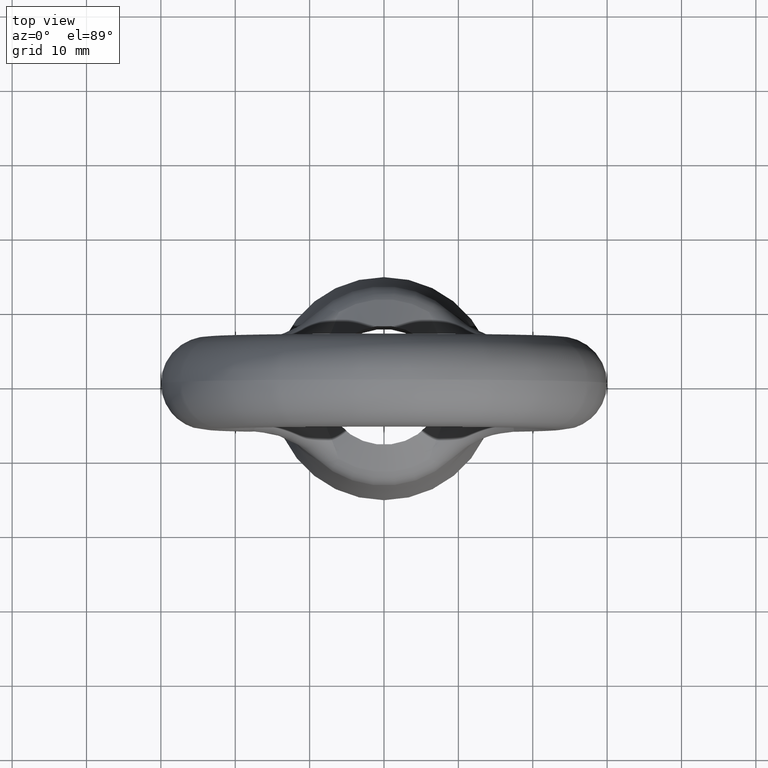
[diagram: clean part render]
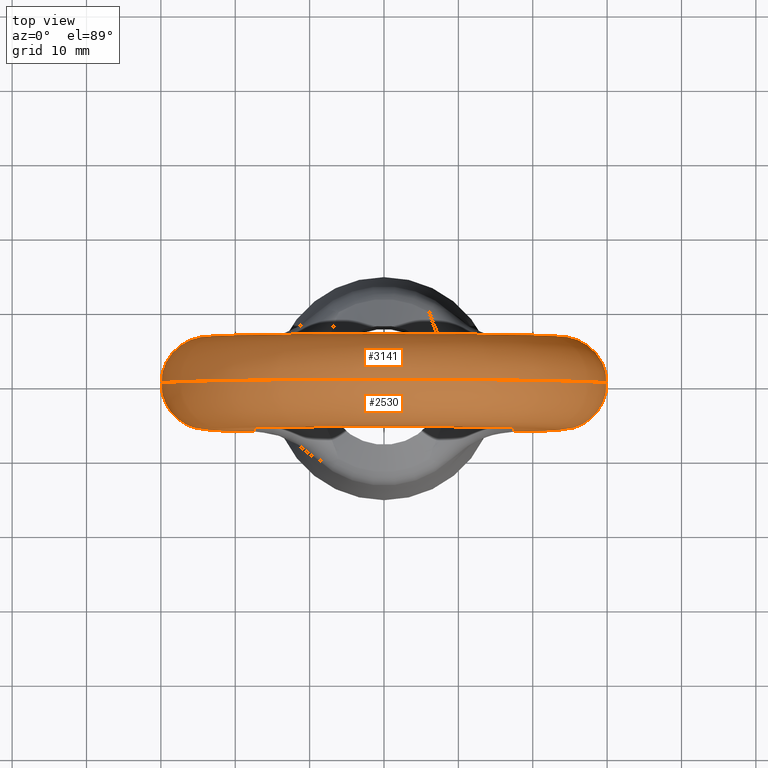
[diagram: same view with one multi-face feature highlighted, each face labeled with its STEP entity id]
A machine part, top view. The highlighted faces form ONE feature: a constant-radius fillet chain: 2 tangent blend faces with common blend radius 6.25 mm. The faces share edges in the B-rep.
Their STEP definitions:
[1] entity #2530 (Torus):
#2 = ORIENTED_EDGE ( 'NONE', *, *, #4, .T. ) ;
#3 = EDGE_CURVE ( 'NONE', #1544, #2917, #3231, .T. ) ;
#4 = EDGE_CURVE ( 'NONE', #2929, #2961, #2964, .T. ) ;
#1157 = ORIENTED_EDGE ( 'NONE', *, *, #3, .T. ) ;
#1544 = VERTEX_POINT ( 'NONE', #2965 ) ;
#2528 = EDGE_CURVE ( 'NONE', #2962, #1544, #3105, .T. ) ;
#2530 = ADVANCED_FACE ( 'NONE', ( #3210 ), #3207, .T. ) ;
#2531 = ORIENTED_EDGE ( 'NONE', *, *, #2528, .T. ) ;
#2917 = VERTEX_POINT ( 'NONE', #3208 ) ;
#2918 = ORIENTED_EDGE ( 'NONE', *, *, #2919, .T. ) ;
#2919 = EDGE_CURVE ( 'NONE', #2917, #2920, #3201, .T. ) ;
#2920 = VERTEX_POINT ( 'NONE', #3653 ) ;
#2921 = ORIENTED_EDGE ( 'NONE', *, *, #2922, .T. ) ;
#2922 = EDGE_CURVE ( 'NONE', #2920, #2923, #3652, .T. ) ;
#2923 = VERTEX_POINT ( 'NONE', #3651 ) ;
#2924 = ORIENTED_EDGE ( 'NONE', *, *, #2925, .F. ) ;
#2925 = EDGE_CURVE ( 'NONE', #2926, #2923, #3650, .T. ) ;
#2926 = VERTEX_POINT ( 'NONE', #4097 ) ;
#2927 = ORIENTED_EDGE ( 'NONE', *, *, #2928, .T. ) ;
#2928 = EDGE_CURVE ( 'NONE', #2926, #2929, #4167, .T. ) ;
#2929 = VERTEX_POINT ( 'NONE', #4197 ) ;
#2954 = ORIENTED_EDGE ( 'NONE', *, *, #2960, .T. ) ;
#2960 = EDGE_CURVE ( 'NONE', #2961, #2962, #4075, .T. ) ;
#2961 = VERTEX_POINT ( 'NONE', #4084 ) ;
#2962 = VERTEX_POINT ( 'NONE', #4076 ) ;
#2963 = EDGE_LOOP ( 'NONE', ( #2954, #2531, #1157, #2918, #2921, #2924, #2927, #2 ) ) ;
#2964 = B_SPLINE_CURVE_WITH_KNOTS ( 'NONE', 3,
 ( #3227, #3226, #3225, #3224, #3223, #3222, #3221, #3220, #3248, #3247, #3246, #3245, #3244, #3243, #3242, #3241, #3240, #3239, #3238, #3237, #3236, #3121, #3120, #3119, #3118, #3117, #3116, #3115, #3114, #3113, #3112, #3111, #3110, #3109, #3108, #3107 ),
 .UNSPECIFIED., .F., .F.,
 ( 4, 2, 2, 2, 2, 2, 2, 2, 2, 2, 2, 2, 2, 2, 2, 2, 2, 4 ),
 ( 0.0000000000000000000, 0.002532923632758632700, 0.005065847265517265400, 0.006332309081896583600, 0.007598770898275901900, 0.008865232714655221100, 0.009498463622844882000, 0.01013169453103454500, 0.01076492543922420500, 0.01108154089331903400, 0.01139815634741386600, 0.01203138725560352900, 0.01266461816379318800, 0.01393107998017250100, 0.01519754179655181400, 0.01773046542931045300, 0.01899692724568977100, 0.02026338906206909300 ),
 .UNSPECIFIED. ) ;
#2965 = CARTESIAN_POINT ( 'NONE',  ( -19.36485179142080400, 2.264335115502151900E-012, -22.91293335861412200 ) ) ;
#2966 = CARTESIAN_POINT ( 'NONE',  ( -17.04277179703460000, -6.151012195224270200, -18.09589767904829900 ) ) ;
#2967 = CARTESIAN_POINT ( 'NONE',  ( -16.95311205554917700, -6.112238205607139800, -18.47604050845937400 ) ) ;
#2968 = CARTESIAN_POINT ( 'NONE',  ( -16.89125194217589500, -6.057159217524242600, -18.86162937785950400 ) ) ;
#2969 = CARTESIAN_POINT ( 'NONE',  ( -16.87500171211552700, -5.927312403113511200, -19.43398348306587300 ) ) ;
#2970 = CARTESIAN_POINT ( 'NONE',  ( -16.88267183032699100, -5.875723234500640000, -19.62415516973145900 ) ) ;
#2971 = CARTESIAN_POINT ( 'NONE',  ( -16.92664900067185800, -5.754983130849096200, -19.98972230802001000 ) ) ;
#2972 = CARTESIAN_POINT ( 'NONE',  ( -16.96285689485827000, -5.685539577687731800, -20.16659089490268600 ) ) ;
#2973 = CARTESIAN_POINT ( 'NONE',  ( -17.06323072682812000, -5.524901373026975400, -20.50722626260734300 ) ) ;
#2974 = CARTESIAN_POINT ( 'NONE',  ( -17.12762721360508400, -5.433500076670241300, -20.67062729624655800 ) ) ;
#2975 = CARTESIAN_POINT ( 'NONE',  ( -17.27456490243411100, -5.234201629986115400, -20.97250123242062300 ) ) ;
#2976 = CARTESIAN_POINT ( 'NONE',  ( -17.35806445011386500, -5.124824790626981000, -21.11355117864467300 ) ) ;
#2977 = CARTESIAN_POINT ( 'NONE',  ( -17.62311183871158300, -4.774557247408192300, -21.50293335712018500 ) ) ;
#2978 = CARTESIAN_POINT ( 'NONE',  ( -17.81709783172027900, -4.513381910449387700, -21.71768966841167300 ) ) ;
#2979 = CARTESIAN_POINT ( 'NONE',  ( -18.19918300366497700, -3.937557177171242500, -22.08753799249271000 ) ) ;
#2980 = CARTESIAN_POINT ( 'NONE',  ( -18.38228753433401900, -3.630914670358940100, -22.23753078786987200 ) ) ;
#2981 = CARTESIAN_POINT ( 'NONE',  ( -18.63069753655396700, -3.142423178963219800, -22.42695027002430300 ) ) ;
#2982 = CARTESIAN_POINT ( 'NONE',  ( -18.70921020355955000, -2.974811561932974200, -22.48399402095878600 ) ) ;
#2983 = CARTESIAN_POINT ( 'NONE',  ( -18.85581844273030000, -2.629619371804272200, -22.58720285964652100 ) ) ;
#2988 = CARTESIAN_POINT ( 'NONE',  ( -13.86567700764093500, -2.454779454984175000, -11.48716104974024800 ) ) ;
#2989 = CARTESIAN_POINT ( 'NONE',  ( -14.44652581673486600, -2.656681776269819400, -10.89839972138922000 ) ) ;
#2990 = CARTESIAN_POINT ( 'NONE',  ( -14.73188768323065100, -2.771871324656344400, -10.60192377022214700 ) ) ;
#2991 = CARTESIAN_POINT ( 'NONE',  ( -15.16392750144547600, -2.990702523390920100, -10.17705467096652900 ) ) ;
#2992 = CARTESIAN_POINT ( 'NONE',  ( -15.30744675396986000, -3.070880720529245400, -10.04012331732672100 ) ) ;
#2993 = CARTESIAN_POINT ( 'NONE',  ( -15.59790482079293600, -3.255144549051865300, -9.787617082536138800 ) ) ;
#2994 = CARTESIAN_POINT ( 'NONE',  ( -15.74643954804348300, -3.360181915901134400, -9.669975295900087500 ) ) ;
#2995 = CARTESIAN_POINT ( 'NONE',  ( -15.97394226603090300, -3.547933730310163000, -9.536845725587085100 ) ) ;
#2996 = CARTESIAN_POINT ( 'NONE',  ( -16.04966970211485100, -3.614860396510169800, -9.500435584846673700 ) ) ;
#2997 = CARTESIAN_POINT ( 'NONE',  ( -16.20189517686499800, -3.760407391947597800, -9.451324885078529200 ) ) ;
#2998 = CARTESIAN_POINT ( 'NONE',  ( -16.27760672172202000, -3.838501739769529600, -9.439438757284637700 ) ) ;
#2999 = CARTESIAN_POINT ( 'NONE',  ( -16.42137521235927600, -3.998558444761923800, -9.448072332348939300 ) ) ;
#3000 = CARTESIAN_POINT ( 'NONE',  ( -16.49066409196688800, -4.081966684756087800, -9.469041671484127700 ) ) ;
#3001 = CARTESIAN_POINT ( 'NONE',  ( -16.61557402954131400, -4.242521271216128700, -9.539345349481818600 ) ) ;
#3002 = CARTESIAN_POINT ( 'NONE',  ( -16.67307212306014100, -4.321899963471524100, -9.589288398273845700 ) ) ;
#3003 = CARTESIAN_POINT ( 'NONE',  ( -16.82653295781729600, -4.545061912940921500, -9.765227703158947400 ) ) ;
#3004 = CARTESIAN_POINT ( 'NONE',  ( -16.90759218076232500, -4.678616665513264800, -9.918353659678583500 ) ) ;
#3005 = CARTESIAN_POINT ( 'NONE',  ( -17.04430961157680700, -4.917960560620718600, -10.24969359798504700 ) ) ;
#3101 = DIRECTION ( 'NONE',  ( 0.0000000000000000000, 0.0000000000000000000, -1.000000000000000000 ) ) ;
#3102 = DIRECTION ( 'NONE',  ( 0.0000000000000000000, -1.000000000000000000, 0.0000000000000000000 ) ) ;
#3103 = CARTESIAN_POINT ( 'NONE',  ( 0.0000000000000000000, 0.0000000000000000000, 0.0000000000000000000 ) ) ;
#3104 = AXIS2_PLACEMENT_3D ( 'NONE', #3103, #3102, #3101 ) ;
#3105 = CIRCLE ( 'NONE', #3104, 29.99999999999974800 ) ;
#3107 = CARTESIAN_POINT ( 'NONE',  ( 17.04277179703460000, -6.151012195224280000, -18.09589767904829900 ) ) ;
#3108 = CARTESIAN_POINT ( 'NONE',  ( 17.14134282389802500, -6.193639933257352400, -17.67797243825434000 ) ) ;
#3109 = CARTESIAN_POINT ( 'NONE',  ( 17.22218837957597500, -6.223411038292576700, -17.25672796667097200 ) ) ;
#3110 = CARTESIAN_POINT ( 'NONE',  ( 17.35217542595722400, -6.253667041882923000, -16.40805854493315900 ) ) ;
#3111 = CARTESIAN_POINT ( 'NONE',  ( 17.40140720904229000, -6.254127769587932500, -15.97950670511449500 ) ) ;
#3112 = CARTESIAN_POINT ( 'NONE',  ( 17.50459713303729700, -6.205747314589185500, -14.69247961850473200 ) ) ;
#3113 = CARTESIAN_POINT ( 'NONE',  ( 17.51517308195389000, -6.109353692984737600, -13.84437779262219300 ) ) ;
#3114 = CARTESIAN_POINT ( 'NONE',  ( 17.45039198008589700, -5.843876852509538400, -12.59074679657612000 ) ) ;
#3115 = CARTESIAN_POINT ( 'NONE',  ( 17.41481085278458700, -5.734211361053395400, -12.17316483598339300 ) ) ;
#3116 = CARTESIAN_POINT ( 'NONE',  ( 17.30975759477319500, -5.465329497170240600, -11.36132989875054000 ) ) ;
#3117 = CARTESIAN_POINT ( 'NONE',  ( 17.24190867375002900, -5.308071033144079500, -10.96759668570014800 ) ) ;
#3118 = CARTESIAN_POINT ( 'NONE',  ( 17.09439175025058000, -5.013363293265668700, -10.40955110482752500 ) ) ;
#3119 = CARTESIAN_POINT ( 'NONE',  ( 17.03715011562820400, -4.904719203633753500, -10.22887495143930700 ) ) ;
#3120 = CARTESIAN_POINT ( 'NONE',  ( 16.89826487496196700, -4.663084896868132200, -9.899654922247419700 ) ) ;
#3121 = CARTESIAN_POINT ( 'NONE',  ( 16.81493675885699400, -4.526757330273079000, -9.746578786266638900 ) ) ;
#3189 = CARTESIAN_POINT ( 'NONE',  ( -17.10050854641172800, -5.025166381319348100, -10.43014570516975100 ) ) ;
#3190 = CARTESIAN_POINT ( 'NONE',  ( -17.24581390449136000, -5.316780234065067400, -10.98790691262838100 ) ) ;
#3191 = CARTESIAN_POINT ( 'NONE',  ( -17.31327665560580400, -5.473647284645641900, -11.38331106369009900 ) ) ;
#3192 = CARTESIAN_POINT ( 'NONE',  ( -17.41708387142209700, -5.740757657185838500, -12.19624166517495200 ) ) ;
#3193 = CARTESIAN_POINT ( 'NONE',  ( -17.45183226864463700, -5.848603566488181500, -12.60985788679867000 ) ) ;
#3194 = CARTESIAN_POINT ( 'NONE',  ( -17.49422237156417000, -6.024730697094868900, -13.44814161974026600 ) ) ;
#3195 = CARTESIAN_POINT ( 'NONE',  ( -17.50153390053537800, -6.092908435521238200, -13.87502652674236000 ) ) ;
#3196 = CARTESIAN_POINT ( 'NONE',  ( -17.48855206723204600, -6.192231163593310100, -14.72638065050606700 ) ) ;
#3197 = CARTESIAN_POINT ( 'NONE',  ( -17.46836725311422400, -6.223556941446915400, -15.15085578333784600 ) ) ;
#3198 = CARTESIAN_POINT ( 'NONE',  ( -17.36497183959187400, -6.269493198029855400, -16.42038138290027800 ) ) ;
#3199 = CARTESIAN_POINT ( 'NONE',  ( -17.23954784160143900, -6.236109388039369400, -17.26159901721108300 ) ) ;
#3200 = CARTESIAN_POINT ( 'NONE',  ( -17.04277179703460000, -6.151012195224270200, -18.09589767904829900 ) ) ;
#3201 = B_SPLINE_CURVE_WITH_KNOTS ( 'NONE', 3,
 ( #3200, #3199, #3198, #3197, #3196, #3195, #3194, #3193, #3192, #3191, #3190, #3189, #3005, #3004, #3003, #3002, #3001, #3000, #2999, #2998, #2997, #2996, #2995, #2994, #2993, #2992, #2991, #2990, #2989, #2988, #3638, #3640, #3639, #3637, #3636, #3635, #3634, #3633 ),
 .UNSPECIFIED., .F., .F.,
 ( 4, 2, 2, 2, 2, 2, 2, 2, 2, 2, 2, 2, 2, 2, 2, 2, 2, 2, 4 ),
 ( 0.0000000000000000000, 0.002547673243820221700, 0.003821509865730331900, 0.005095346487640441600, 0.006369183109550552300, 0.007643019731460663800, 0.008279938042415720800, 0.008916856353370779600, 0.009235315508848308100, 0.009553774664325838400, 0.009872233819803366900, 0.01019069297528089700, 0.01082761128623596100, 0.01146452959719102500, 0.01273836621910115100, 0.01401220284101127900, 0.01528603946292140600, 0.01783371270674166000, 0.02038138595056191200 ),
 .UNSPECIFIED. ) ;
#3202 = DIRECTION ( 'NONE',  ( 0.0000000000000000000, 0.0000000000000000000, -1.000000000000000000 ) ) ;
#3203 = DIRECTION ( 'NONE',  ( 0.0000000000000000000, -1.000000000000000000, 0.0000000000000000000 ) ) ;
#3204 = DIRECTION ( 'NONE',  ( 0.0000000000000000000, 0.0000000000000000000, -1.000000000000000000 ) ) ;
#3205 = DIRECTION ( 'NONE',  ( 0.0000000000000000000, -1.000000000000000000, 0.0000000000000000000 ) ) ;
#3206 = AXIS2_PLACEMENT_3D ( 'NONE', #3209, #3205, #3204 ) ;
#3207 = TOROIDAL_SURFACE ( 'NONE', #3206, 23.74999999999975100, 6.250000000000000000 ) ;
#3208 = CARTESIAN_POINT ( 'NONE',  ( -17.04277179703460000, -6.151012195224270200, -18.09589767904829900 ) ) ;
#3209 = CARTESIAN_POINT ( 'NONE',  ( 0.0000000000000000000, 0.0000000000000000000, 0.0000000000000000000 ) ) ;
#3210 = FACE_OUTER_BOUND ( 'NONE', #2963, .T. ) ;
#3217 = CARTESIAN_POINT ( 'NONE',  ( -19.33119322631015500, -0.7809759802542158800, -22.89297971279860300 ) ) ;
#3218 = CARTESIAN_POINT ( 'NONE',  ( -19.36485179142093600, -0.3877032855326345600, -22.91293335861418600 ) ) ;
#3219 = CARTESIAN_POINT ( 'NONE',  ( -19.36485179142080400, 2.264335115502151900E-012, -22.91293335861412200 ) ) ;
#3220 = CARTESIAN_POINT ( 'NONE',  ( 13.54699932117073000, -2.362357481828071900, -11.80366577606515600 ) ) ;
#3221 = CARTESIAN_POINT ( 'NONE',  ( 12.93692658897605300, -2.208915950697682500, -12.38229760324862900 ) ) ;
#3222 = CARTESIAN_POINT ( 'NONE',  ( 12.62566730780291000, -2.141807837083096200, -12.66469655626187500 ) ) ;
#3223 = CARTESIAN_POINT ( 'NONE',  ( 11.67016064369422600, -1.960211869483216700, -13.48508992466458700 ) ) ;
#3224 = CARTESIAN_POINT ( 'NONE',  ( 11.00414795365064100, -1.865057928520021900, -13.99615391087030000 ) ) ;
#3225 = CARTESIAN_POINT ( 'NONE',  ( 9.607297013871297900, -1.705106647830318700, -14.93285550772168700 ) ) ;
#3226 = CARTESIAN_POINT ( 'NONE',  ( 8.876682196791099600, -1.640770884205409400, -15.35889604689332400 ) ) ;
#3227 = CARTESIAN_POINT ( 'NONE',  ( 8.111039694346169800, -1.587437685473579900, -15.73774275576744800 ) ) ;
#3228 = CARTESIAN_POINT ( 'NONE',  ( -18.92418516439107300, -2.451129391184467800, -22.63353181231373100 ) ) ;
#3229 = CARTESIAN_POINT ( 'NONE',  ( -19.10775450492446800, -1.909922827401022700, -22.75509216573016100 ) ) ;
#3230 = CARTESIAN_POINT ( 'NONE',  ( -19.20248790463329800, -1.539889588704345100, -22.81392465897806000 ) ) ;
#3231 = B_SPLINE_CURVE_WITH_KNOTS ( 'NONE', 3,
 ( #3219, #3218, #3217, #3230, #3229, #3228, #2983, #2982, #2981, #2980, #2979, #2978, #2977, #2976, #2975, #2974, #2973, #2972, #2971, #2970, #2969, #2968, #2967, #2966 ),
 .UNSPECIFIED., .F., .F.,
 ( 4, 2, 2, 2, 2, 2, 2, 2, 2, 2, 2, 4 ),
 ( 0.009352304537785046200, 0.01052074067515675800, 0.01168917681252846700, 0.01227339488121432400, 0.01285761294990017700, 0.01402604908727189000, 0.01519448522464360600, 0.01577870329332946300, 0.01636292136201532300, 0.01694713943070118000, 0.01753135749938703600, 0.01869979363675875300 ),
 .UNSPECIFIED. ) ;
#3236 = CARTESIAN_POINT ( 'NONE',  ( 16.65781289992851200, -4.300586411085213000, -9.575050532782443100 ) ) ;
#3237 = CARTESIAN_POINT ( 'NONE',  ( 16.59890712237342600, -4.220182988391112400, -9.527075591415297100 ) ) ;
#3238 = CARTESIAN_POINT ( 'NONE',  ( 16.47078785150447900, -4.057639141829227500, -9.461710667581147800 ) ) ;
#3239 = CARTESIAN_POINT ( 'NONE',  ( 16.40123005739349800, -3.975077192505347400, -9.444081537217437400 ) ) ;
#3240 = CARTESIAN_POINT ( 'NONE',  ( 16.18019810619075100, -3.732719797247217900, -9.440621465775503700 ) ) ;
#3241 = CARTESIAN_POINT ( 'NONE',  ( 16.02313715277431400, -3.586749817764413300, -9.504876318892199200 ) ) ;
#3242 = CARTESIAN_POINT ( 'NONE',  ( 15.72250592268965800, -3.342542114641776400, -9.687751591404126100 ) ) ;
#3243 = CARTESIAN_POINT ( 'NONE',  ( 15.57400674776673500, -3.238809136846755100, -9.807060328859117600 ) ) ;
#3244 = CARTESIAN_POINT ( 'NONE',  ( 15.28085567527491200, -3.055408538262048600, -10.06482561417770100 ) ) ;
#3245 = CARTESIAN_POINT ( 'NONE',  ( 15.13765308737072200, -2.976593723816713900, -10.20241387556497300 ) ) ;
#3246 = CARTESIAN_POINT ( 'NONE',  ( 14.70917673538873100, -2.762201382763406900, -10.62535612887652900 ) ) ;
#3247 = CARTESIAN_POINT ( 'NONE',  ( 14.42488092375795400, -2.648333875802516300, -10.92059145458517700 ) ) ;
#3248 = CARTESIAN_POINT ( 'NONE',  ( 13.84355405973236100, -2.447978338930093800, -11.50931385154767000 ) ) ;
#3633 = CARTESIAN_POINT ( 'NONE',  ( -8.111039694346160900, -1.587437685473565000, -15.73774275576744800 ) ) ;
#3634 = CARTESIAN_POINT ( 'NONE',  ( -8.877050675783799200, -1.640796551750357800, -15.35871372021575700 ) ) ;
#3635 = CARTESIAN_POINT ( 'NONE',  ( -9.611557705893833500, -1.705393914827898000, -14.93065098489180000 ) ) ;
#3636 = CARTESIAN_POINT ( 'NONE',  ( -11.02122853489527700, -1.867217477117489600, -13.98403742893089500 ) ) ;
#3637 = CARTESIAN_POINT ( 'NONE',  ( -11.69746644432935900, -1.964454972726174400, -13.46338786075104300 ) ) ;
#3638 = CARTESIAN_POINT ( 'NONE',  ( -13.57045371240568500, -2.368919328573083000, -11.78069031534973600 ) ) ;
#3639 = CARTESIAN_POINT ( 'NONE',  ( -12.65455403378713100, -2.147803229258527000, -12.63896386355753500 ) ) ;
#3640 = CARTESIAN_POINT ( 'NONE',  ( -12.96483437946014700, -2.215326195808785800, -12.35649845964477900 ) ) ;
#3641 = CARTESIAN_POINT ( 'NONE',  ( 0.0000000000000000000, 7.653789711389857900E-016, 0.0000000000000000000 ) ) ;
#3642 = AXIS2_PLACEMENT_3D ( 'NONE', #3641, #3203, #3202 ) ;
#3644 = CARTESIAN_POINT ( 'NONE',  ( -8.000000000000000000, 0.0000000000000000000, -15.56437700000010200 ) ) ;
#3645 = CARTESIAN_POINT ( 'NONE',  ( -8.000004650171268500, -0.2682021957783544100, -15.56438005725637600 ) ) ;
#3646 = CARTESIAN_POINT ( 'NONE',  ( -8.009119476214849000, -0.5383928130978474800, -15.57938130876970600 ) ) ;
#3647 = CARTESIAN_POINT ( 'NONE',  ( -8.045737007442703300, -1.068063597566312900, -15.63773547490219300 ) ) ;
#3648 = CARTESIAN_POINT ( 'NONE',  ( -8.073215190745678200, -1.329471996224376600, -15.68102708744298600 ) ) ;
#3649 = CARTESIAN_POINT ( 'NONE',  ( -8.111039694346160900, -1.587437685473565000, -15.73774275576744800 ) ) ;
#3650 = CIRCLE ( 'NONE', #3642, 17.49999999999975100 ) ;
#3651 = CARTESIAN_POINT ( 'NONE',  ( -8.000000000000000000, 0.0000000000000000000, -15.56437700000010200 ) ) ;
#3652 = B_SPLINE_CURVE_WITH_KNOTS ( 'NONE', 3,
 ( #3649, #3648, #3647, #3646, #3645, #3644 ),
 .UNSPECIFIED., .F., .F.,
 ( 4, 2, 4 ),
 ( 0.007011151935412306000, 0.007809217623441650100, 0.008607283311470995100 ),
 .UNSPECIFIED. ) ;
#3653 = CARTESIAN_POINT ( 'NONE',  ( -8.111039694346160900, -1.587437685473565000, -15.73774275576744800 ) ) ;
#4075 = B_SPLINE_CURVE_WITH_KNOTS ( 'NONE', 3,
 ( #4220, #4219, #4218, #4217, #4216, #4215, #4083, #4082, #4081, #4080, #4079, #4078, #4077, #4166, #4165, #4164, #4163, #4162, #4161, #4160, #4159, #4158, #4157, #4156 ),
 .UNSPECIFIED., .F., .F.,
 ( 4, 2, 2, 2, 2, 2, 2, 2, 2, 2, 2, 4 ),
 ( 0.0000000000000000000, 0.001169038067223127100, 0.001753557100834690200, 0.002338076134446253700, 0.002922595168057817300, 0.003507114201669380400, 0.004091633235280944800, 0.004676152268892507500, 0.005845190336115634600, 0.007014228403338760800, 0.008183266470561889600, 0.009352304537785015000 ),
 .UNSPECIFIED. ) ;
#4076 = CARTESIAN_POINT ( 'NONE',  ( 19.36485179142080400, -2.264111036967491900E-012, -22.91293335861412200 ) ) ;
#4077 = CARTESIAN_POINT ( 'NONE',  ( 17.62888353383861800, -4.765889005356911800, -21.49313357080668000 ) ) ;
#4078 = CARTESIAN_POINT ( 'NONE',  ( 17.53480404490484500, -4.891260074294403500, -21.37323152869046400 ) ) ;
#4079 = CARTESIAN_POINT ( 'NONE',  ( 17.35756464424425300, -5.125483688448054100, -21.11278532567024500 ) ) ;
#4080 = CARTESIAN_POINT ( 'NONE',  ( 17.27416151253788000, -5.234749343787800800, -20.97166800601691600 ) ) ;
#4081 = CARTESIAN_POINT ( 'NONE',  ( 17.12806355700545800, -5.432907666622767800, -20.67152822247150100 ) ) ;
#4082 = CARTESIAN_POINT ( 'NONE',  ( 17.06484824523459000, -5.522513536142709800, -20.51176390515908200 ) ) ;
#4083 = CARTESIAN_POINT ( 'NONE',  ( 16.96387995250271500, -5.683706637746459100, -20.17098986080447900 ) ) ;
#4084 = CARTESIAN_POINT ( 'NONE',  ( 17.04277179703460000, -6.151012195224280000, -18.09589767904829900 ) ) ;
#4097 = CARTESIAN_POINT ( 'NONE',  ( 8.000000000000000000, 0.0000000000000000000, -15.56437700000015000 ) ) ;
#4098 = CARTESIAN_POINT ( 'NONE',  ( 8.000000000000000000, 0.0000000000000000000, -15.56437700000015000 ) ) ;
#4156 = CARTESIAN_POINT ( 'NONE',  ( 19.36485179142080400, -2.264111036967491900E-012, -22.91293335861412200 ) ) ;
#4157 = CARTESIAN_POINT ( 'NONE',  ( 19.36485179142067300, -0.3879030141946318600, -22.91293335861403000 ) ) ;
#4158 = CARTESIAN_POINT ( 'NONE',  ( 19.33225393210249600, -0.7721711207355783600, -22.89361850442665500 ) ) ;
#4159 = CARTESIAN_POINT ( 'NONE',  ( 19.20398942362603700, -1.533535957191949800, -22.81485941853016900 ) ) ;
#4160 = CARTESIAN_POINT ( 'NONE',  ( 19.10710975601693600, -1.911798821237025200, -22.75466404671360400 ) ) ;
#4161 = CARTESIAN_POINT ( 'NONE',  ( 18.86374112916450900, -2.629357814327273300, -22.59350669302706600 ) ) ;
#4162 = CARTESIAN_POINT ( 'NONE',  ( 18.71669795624354300, -2.972925421500443000, -22.49244585332153400 ) ) ;
#4163 = CARTESIAN_POINT ( 'NONE',  ( 18.38260925855518500, -3.630658305006380100, -22.23785736102297200 ) ) ;
#4164 = CARTESIAN_POINT ( 'NONE',  ( 18.19707127001715500, -3.940735206080630000, -22.08548962799375600 ) ) ;
#4165 = CARTESIAN_POINT ( 'NONE',  ( 17.91373961735210000, -4.367739317010743200, -21.81123848703569500 ) ) ;
#4166 = CARTESIAN_POINT ( 'NONE',  ( 17.81819513584931200, -4.504309705674778300, -21.71187117026612900 ) ) ;
#4167 = B_SPLINE_CURVE_WITH_KNOTS ( 'NONE', 3,
 ( #4098, #4200, #4199, #4198 ),
 .UNSPECIFIED., .F., .F.,
 ( 4, 4 ),
 ( 0.008607283311471000300, 0.01020782760571694500 ),
 .UNSPECIFIED. ) ;
#4197 = CARTESIAN_POINT ( 'NONE',  ( 8.111039694346169800, -1.587437685473579900, -15.73774275576744800 ) ) ;
#4198 = CARTESIAN_POINT ( 'NONE',  ( 8.111039694346169800, -1.587437685473579900, -15.73774275576744800 ) ) ;
#4199 = CARTESIAN_POINT ( 'NONE',  ( 8.034739435842126900, -1.067064728757689500, -15.62333490523499800 ) ) ;
#4200 = CARTESIAN_POINT ( 'NONE',  ( 8.000004606485253700, -0.5378854802323731500, -15.56437998610500500 ) ) ;
#4215 = CARTESIAN_POINT ( 'NONE',  ( 16.92655022206211900, -5.755080137274559200, -19.98962445138506200 ) ) ;
#4216 = CARTESIAN_POINT ( 'NONE',  ( 16.88238577102826500, -5.876684329007409800, -19.62104768280253700 ) ) ;
#4217 = CARTESIAN_POINT ( 'NONE',  ( 16.87493281315704900, -5.928100269409066300, -19.43095498714879800 ) ) ;
#4218 = CARTESIAN_POINT ( 'NONE',  ( 16.89169284103761000, -6.057968228145899300, -18.85716227443033000 ) ) ;
#4219 = CARTESIAN_POINT ( 'NONE',  ( 16.95313379084431900, -6.112247605189319100, -18.47594835431686600 ) ) ;
#4220 = CARTESIAN_POINT ( 'NONE',  ( 17.04277179703460000, -6.151012195224280000, -18.09589767904829900 ) ) ;
[2] entity #3141 (Torus):
#1544 = VERTEX_POINT ( 'NONE', #2965 ) ;
#2089 = CARTESIAN_POINT ( 'NONE',  ( -14.70917673538873600, 2.762201382763405100, -10.62535612887652400 ) ) ;
#2090 = CARTESIAN_POINT ( 'NONE',  ( -14.42488092375795700, 2.648333875802509200, -10.92059145458517100 ) ) ;
#2091 = CARTESIAN_POINT ( 'NONE',  ( -13.84355405973236100, 2.447978338930086200, -11.50931385154766700 ) ) ;
#2092 = CARTESIAN_POINT ( 'NONE',  ( -13.54699932117073000, 2.362357481828072800, -11.80366577606515200 ) ) ;
#2093 = CARTESIAN_POINT ( 'NONE',  ( -12.93692658897605300, 2.208915950697682500, -12.38229760324862700 ) ) ;
#2094 = CARTESIAN_POINT ( 'NONE',  ( -12.62566730780290700, 2.141807837083095300, -12.66469655626187300 ) ) ;
#2095 = CARTESIAN_POINT ( 'NONE',  ( -11.67016064369423100, 1.960211869483214500, -13.48508992466458500 ) ) ;
#2096 = CARTESIAN_POINT ( 'NONE',  ( -11.00414795365064100, 1.865057928520018400, -13.99615391087029600 ) ) ;
#2097 = CARTESIAN_POINT ( 'NONE',  ( -9.607297013871303200, 1.705106647830315400, -14.93285550772168500 ) ) ;
#2098 = CARTESIAN_POINT ( 'NONE',  ( -8.876682196791096000, 1.640770884205409600, -15.35889604689332600 ) ) ;
#2099 = CARTESIAN_POINT ( 'NONE',  ( -8.111039694346169800, 1.587437685473575000, -15.73774275576744800 ) ) ;
#2100 = CARTESIAN_POINT ( 'NONE',  ( -17.04277179703460000, 6.151012195224280000, -18.09589767904829900 ) ) ;
#2101 = B_SPLINE_CURVE_WITH_KNOTS ( 'NONE', 3,
 ( #2099, #2098, #2097, #2096, #2095, #2094, #2093, #2092, #2091, #2090, #2089, #2140, #2139, #2138, #2137, #2136, #2135, #2134, #2133, #2132, #2131, #2130, #2129, #2128, #2127, #2126, #2125, #2124, #2123, #2122, #2121, #2120, #2119, #2118, #2117, #2116 ),
 .UNSPECIFIED., .F., .F.,
 ( 4, 2, 2, 2, 2, 2, 2, 2, 2, 2, 2, 2, 2, 2, 2, 2, 2, 4 ),
 ( 0.0000000000000000000, 0.002532923632758627900, 0.005065847265517255800, 0.006332309081896571500, 0.007598770898275888100, 0.008865232714655203700, 0.009498463622844859400, 0.01013169453103451500, 0.01076492543922417200, 0.01108154089331900500, 0.01139815634741383900, 0.01203138725560350100, 0.01266461816379316000, 0.01393107998017248200, 0.01519754179655180200, 0.01773046542931044600, 0.01899692724568977400, 0.02026338906206910300 ),
 .UNSPECIFIED. ) ;
#2115 = CARTESIAN_POINT ( 'NONE',  ( -8.111039694346169800, 1.587437685473575000, -15.73774275576744800 ) ) ;
#2116 = CARTESIAN_POINT ( 'NONE',  ( -17.04277179703460000, 6.151012195224280000, -18.09589767904829900 ) ) ;
#2117 = CARTESIAN_POINT ( 'NONE',  ( -17.14134282389802900, 6.193639933257354200, -17.67797243825434400 ) ) ;
#2118 = CARTESIAN_POINT ( 'NONE',  ( -17.22218837957598200, 6.223411038292580200, -17.25672796667097900 ) ) ;
#2119 = CARTESIAN_POINT ( 'NONE',  ( -17.35217542595722400, 6.253667041882924800, -16.40805854493315900 ) ) ;
#2120 = CARTESIAN_POINT ( 'NONE',  ( -17.40140720904229700, 6.254127769587931600, -15.97950670511449500 ) ) ;
#2121 = CARTESIAN_POINT ( 'NONE',  ( -17.50459713303730400, 6.205747314589184600, -14.69247961850472700 ) ) ;
#2122 = CARTESIAN_POINT ( 'NONE',  ( -17.51517308195389000, 6.109353692984738500, -13.84437779262218600 ) ) ;
#2123 = CARTESIAN_POINT ( 'NONE',  ( -17.45039198008589300, 5.843876852509534800, -12.59074679657611100 ) ) ;
#2124 = CARTESIAN_POINT ( 'NONE',  ( -17.41481085278458000, 5.734211361053390900, -12.17316483598339100 ) ) ;
#2125 = CARTESIAN_POINT ( 'NONE',  ( -17.30975759477318500, 5.465329497170234400, -11.36132989875053700 ) ) ;
#2126 = CARTESIAN_POINT ( 'NONE',  ( -17.24190867375001400, 5.308071033144075000, -10.96759668570014800 ) ) ;
#2127 = CARTESIAN_POINT ( 'NONE',  ( -17.09439175025056900, 5.013363293265662400, -10.40955110482752500 ) ) ;
#2128 = CARTESIAN_POINT ( 'NONE',  ( -17.03715011562819700, 4.904719203633745500, -10.22887495143929600 ) ) ;
#2129 = CARTESIAN_POINT ( 'NONE',  ( -16.89826487496196300, 4.663084896868124200, -9.899654922247412600 ) ) ;
#2130 = CARTESIAN_POINT ( 'NONE',  ( -16.81493675885698000, 4.526757330273071900, -9.746578786266630000 ) ) ;
#2131 = CARTESIAN_POINT ( 'NONE',  ( -16.65781289992850500, 4.300586411085207700, -9.575050532782443100 ) ) ;
#2132 = CARTESIAN_POINT ( 'NONE',  ( -16.59890712237342200, 4.220182988391110600, -9.527075591415290000 ) ) ;
#2133 = CARTESIAN_POINT ( 'NONE',  ( -16.47078785150448600, 4.057639141829226600, -9.461710667581142400 ) ) ;
#2134 = CARTESIAN_POINT ( 'NONE',  ( -16.40123005739350500, 3.975077192505356700, -9.444081537217448000 ) ) ;
#2135 = CARTESIAN_POINT ( 'NONE',  ( -16.18019810619075800, 3.732719797247222800, -9.440621465775516100 ) ) ;
#2136 = CARTESIAN_POINT ( 'NONE',  ( -16.02313715277433200, 3.586749817764413700, -9.504876318892193900 ) ) ;
#2137 = CARTESIAN_POINT ( 'NONE',  ( -15.72250592268966900, 3.342542114641776400, -9.687751591404120800 ) ) ;
#2138 = CARTESIAN_POINT ( 'NONE',  ( -15.57400674776673500, 3.238809136846752900, -9.807060328859115800 ) ) ;
#2139 = CARTESIAN_POINT ( 'NONE',  ( -15.28085567527491800, 3.055408538262048200, -10.06482561417770100 ) ) ;
#2140 = CARTESIAN_POINT ( 'NONE',  ( -15.13765308737072400, 2.976593723816712600, -10.20241387556497000 ) ) ;
#2528 = EDGE_CURVE ( 'NONE', #2962, #1544, #3105, .T. ) ;
#2923 = VERTEX_POINT ( 'NONE', #3651 ) ;
#2925 = EDGE_CURVE ( 'NONE', #2926, #2923, #3650, .T. ) ;
#2926 = VERTEX_POINT ( 'NONE', #4097 ) ;
#2952 = ORIENTED_EDGE ( 'NONE', *, *, #3187, .T. ) ;
#2962 = VERTEX_POINT ( 'NONE', #4076 ) ;
#2965 = CARTESIAN_POINT ( 'NONE',  ( -19.36485179142080400, 2.264335115502151900E-012, -22.91293335861412200 ) ) ;
#3101 = DIRECTION ( 'NONE',  ( 0.0000000000000000000, 0.0000000000000000000, -1.000000000000000000 ) ) ;
#3102 = DIRECTION ( 'NONE',  ( 0.0000000000000000000, -1.000000000000000000, 0.0000000000000000000 ) ) ;
#3103 = CARTESIAN_POINT ( 'NONE',  ( 0.0000000000000000000, 0.0000000000000000000, 0.0000000000000000000 ) ) ;
#3104 = AXIS2_PLACEMENT_3D ( 'NONE', #3103, #3102, #3101 ) ;
#3105 = CIRCLE ( 'NONE', #3104, 29.99999999999974800 ) ;
#3122 = VERTEX_POINT ( 'NONE', #7967 ) ;
#3141 = ADVANCED_FACE ( 'NONE', ( #8038 ), #8037, .T. ) ;
#3142 = EDGE_LOOP ( 'NONE', ( #3143, #3144, #3147, #2952, #3173, #3174, #3175, #3178 ) ) ;
#3143 = ORIENTED_EDGE ( 'NONE', *, *, #2528, .F. ) ;
#3144 = ORIENTED_EDGE ( 'NONE', *, *, #3145, .T. ) ;
#3145 = EDGE_CURVE ( 'NONE', #2962, #3146, #8108, .T. ) ;
#3146 = VERTEX_POINT ( 'NONE', #8109 ) ;
#3147 = ORIENTED_EDGE ( 'NONE', *, *, #3148, .T. ) ;
#3148 = EDGE_CURVE ( 'NONE', #3146, #3122, #8073, .T. ) ;
#3173 = ORIENTED_EDGE ( 'NONE', *, *, #2925, .T. ) ;
#3174 = ORIENTED_EDGE ( 'NONE', *, *, #3185, .T. ) ;
#3175 = ORIENTED_EDGE ( 'NONE', *, *, #3176, .T. ) ;
#3176 = EDGE_CURVE ( 'NONE', #3181, #3177, #2101, .T. ) ;
#3177 = VERTEX_POINT ( 'NONE', #2100 ) ;
#3178 = ORIENTED_EDGE ( 'NONE', *, *, #3179, .T. ) ;
#3179 = EDGE_CURVE ( 'NONE', #3177, #1544, #6341, .T. ) ;
#3181 = VERTEX_POINT ( 'NONE', #6309 ) ;
#3185 = EDGE_CURVE ( 'NONE', #2923, #3181, #8165, .T. ) ;
#3187 = EDGE_CURVE ( 'NONE', #3122, #2926, #8208, .T. ) ;
#3202 = DIRECTION ( 'NONE',  ( 0.0000000000000000000, 0.0000000000000000000, -1.000000000000000000 ) ) ;
#3203 = DIRECTION ( 'NONE',  ( 0.0000000000000000000, -1.000000000000000000, 0.0000000000000000000 ) ) ;
#3641 = CARTESIAN_POINT ( 'NONE',  ( 0.0000000000000000000, 7.653789711389857900E-016, 0.0000000000000000000 ) ) ;
#3642 = AXIS2_PLACEMENT_3D ( 'NONE', #3641, #3203, #3202 ) ;
#3650 = CIRCLE ( 'NONE', #3642, 17.49999999999975100 ) ;
#3651 = CARTESIAN_POINT ( 'NONE',  ( -8.000000000000000000, 0.0000000000000000000, -15.56437700000010200 ) ) ;
#4076 = CARTESIAN_POINT ( 'NONE',  ( 19.36485179142080400, -2.264111036967491900E-012, -22.91293335861412200 ) ) ;
#4097 = CARTESIAN_POINT ( 'NONE',  ( 8.000000000000000000, 0.0000000000000000000, -15.56437700000015000 ) ) ;
#6303 = CARTESIAN_POINT ( 'NONE',  ( -17.04277179703460000, 6.151012195224280000, -18.09589767904829900 ) ) ;
#6309 = CARTESIAN_POINT ( 'NONE',  ( -8.111039694346169800, 1.587437685473575000, -15.73774275576744800 ) ) ;
#6318 = CARTESIAN_POINT ( 'NONE',  ( -19.36485179142080400, 2.264335115502151900E-012, -22.91293335861412200 ) ) ;
#6319 = CARTESIAN_POINT ( 'NONE',  ( -19.36485179142067300, 0.3879030141946325200, -22.91293335861404000 ) ) ;
#6320 = CARTESIAN_POINT ( 'NONE',  ( -19.33225393210249600, 0.7721711207355761400, -22.89361850442664400 ) ) ;
#6321 = CARTESIAN_POINT ( 'NONE',  ( -19.20398942362605200, 1.533535957191950000, -22.81485941853018000 ) ) ;
#6322 = CARTESIAN_POINT ( 'NONE',  ( -19.10710975601693600, 1.911798821237023800, -22.75466404671359700 ) ) ;
#6323 = CARTESIAN_POINT ( 'NONE',  ( -18.86374112916451700, 2.629357814327272400, -22.59350669302708400 ) ) ;
#6324 = CARTESIAN_POINT ( 'NONE',  ( -18.71669795624355000, 2.972925421500441300, -22.49244585332153800 ) ) ;
#6325 = CARTESIAN_POINT ( 'NONE',  ( -18.38260925855518800, 3.630658305006376100, -22.23785736102296800 ) ) ;
#6326 = CARTESIAN_POINT ( 'NONE',  ( -18.19707127001715500, 3.940735206080624700, -22.08548962799375600 ) ) ;
#6327 = CARTESIAN_POINT ( 'NONE',  ( -17.91373961735210700, 4.367739317010738800, -21.81123848703569800 ) ) ;
#6328 = CARTESIAN_POINT ( 'NONE',  ( -17.81819513584930800, 4.504309705674773800, -21.71187117026612900 ) ) ;
#6329 = CARTESIAN_POINT ( 'NONE',  ( -17.62888353383863600, 4.765889005356906500, -21.49313357080669500 ) ) ;
#6330 = CARTESIAN_POINT ( 'NONE',  ( -17.53480404490485300, 4.891260074294396400, -21.37323152869047500 ) ) ;
#6331 = CARTESIAN_POINT ( 'NONE',  ( -17.35756464424424900, 5.125483688448048800, -21.11278532567025200 ) ) ;
#6332 = CARTESIAN_POINT ( 'NONE',  ( -17.27416151253787600, 5.234749343787799900, -20.97166800601691600 ) ) ;
#6333 = CARTESIAN_POINT ( 'NONE',  ( -17.12806355700545800, 5.432907666622764300, -20.67152822247151200 ) ) ;
#6334 = CARTESIAN_POINT ( 'NONE',  ( -17.06484824523459000, 5.522513536142704500, -20.51176390515909600 ) ) ;
#6335 = CARTESIAN_POINT ( 'NONE',  ( -16.96387995250271500, 5.683706637746454700, -20.17098986080450000 ) ) ;
#6336 = CARTESIAN_POINT ( 'NONE',  ( -16.92655022206212900, 5.755080137274556600, -19.98962445138507200 ) ) ;
#6337 = CARTESIAN_POINT ( 'NONE',  ( -16.88238577102826500, 5.876684329007404500, -19.62104768280253700 ) ) ;
#6338 = CARTESIAN_POINT ( 'NONE',  ( -16.87493281315705200, 5.928100269409070800, -19.43095498714880900 ) ) ;
#6339 = CARTESIAN_POINT ( 'NONE',  ( -16.89169284103761400, 6.057968228145902900, -18.85716227443033700 ) ) ;
#6340 = CARTESIAN_POINT ( 'NONE',  ( -16.95313379084433000, 6.112247605189320900, -18.47594835431687300 ) ) ;
#6341 = B_SPLINE_CURVE_WITH_KNOTS ( 'NONE', 3,
 ( #6303, #6340, #6339, #6338, #6337, #6336, #6335, #6334, #6333, #6332, #6331, #6330, #6329, #6328, #6327, #6326, #6325, #6324, #6323, #6322, #6321, #6320, #6319, #6318 ),
 .UNSPECIFIED., .F., .F.,
 ( 4, 2, 2, 2, 2, 2, 2, 2, 2, 2, 2, 4 ),
 ( 0.0000000000000000000, 0.001169038067223129000, 0.001753557100834693200, 0.002338076134446257200, 0.002922595168057821200, 0.003507114201669385600, 0.004091633235280949100, 0.004676152268892513500, 0.005845190336115646700, 0.007014228403338779900, 0.008183266470561913900, 0.009352304537785046200 ),
 .UNSPECIFIED. ) ;
#7967 = CARTESIAN_POINT ( 'NONE',  ( 8.111039694346169800, 1.587437685473569900, -15.73774275576744800 ) ) ;
#8033 = DIRECTION ( 'NONE',  ( 0.0000000000000000000, 0.0000000000000000000, -1.000000000000000000 ) ) ;
#8034 = DIRECTION ( 'NONE',  ( 0.0000000000000000000, -1.000000000000000000, 0.0000000000000000000 ) ) ;
#8035 = CARTESIAN_POINT ( 'NONE',  ( 0.0000000000000000000, 0.0000000000000000000, 0.0000000000000000000 ) ) ;
#8036 = AXIS2_PLACEMENT_3D ( 'NONE', #8035, #8034, #8033 ) ;
#8037 = TOROIDAL_SURFACE ( 'NONE', #8036, 23.74999999999975100, 6.250000000000000000 ) ;
#8038 = FACE_OUTER_BOUND ( 'NONE', #3142, .T. ) ;
#8072 = CARTESIAN_POINT ( 'NONE',  ( 17.04277179703460000, 6.151012195224280000, -18.09589767904829900 ) ) ;
#8073 = B_SPLINE_CURVE_WITH_KNOTS ( 'NONE', 3,
 ( #8072, #8103, #8102, #8101, #8100, #8099, #8098, #8097, #8096, #8095, #8094, #8151, #8150, #8149, #8148, #8147, #8146, #8145, #8144, #8143, #8142, #8141, #8140, #8139, #8138, #8137, #8136, #8135, #8134, #8133, #8132, #8131, #8130, #8129, #8128, #8127, #8126, #8125 ),
 .UNSPECIFIED., .F., .F.,
 ( 4, 2, 2, 2, 2, 2, 2, 2, 2, 2, 2, 2, 2, 2, 2, 2, 2, 2, 4 ),
 ( 0.0000000000000000000, 0.002547673243820209100, 0.003821509865730318400, 0.005095346487640427800, 0.006369183109550535800, 0.007643019731460645600, 0.008279938042415703500, 0.008916856353370760500, 0.009235315508848292500, 0.009553774664325822800, 0.009872233819803353000, 0.01019069297528088500, 0.01082761128623595200, 0.01146452959719102000, 0.01273836621910116500, 0.01401220284101131200, 0.01528603946292145600, 0.01783371270674174300, 0.02038138595056202700 ),
 .UNSPECIFIED. ) ;
#8074 = CARTESIAN_POINT ( 'NONE',  ( 17.04277179703460000, 6.151012195224280000, -18.09589767904829900 ) ) ;
#8075 = CARTESIAN_POINT ( 'NONE',  ( 16.95311205554918000, 6.112238205607139800, -18.47604050845937700 ) ) ;
#8076 = CARTESIAN_POINT ( 'NONE',  ( 16.89125194217588400, 6.057159217524243500, -18.86162937785950400 ) ) ;
#8077 = CARTESIAN_POINT ( 'NONE',  ( 16.87500171211553000, 5.927312403113512000, -19.43398348306588000 ) ) ;
#8078 = CARTESIAN_POINT ( 'NONE',  ( 16.88267183032699100, 5.875723234500640000, -19.62415516973145600 ) ) ;
#8079 = CARTESIAN_POINT ( 'NONE',  ( 16.92664900067186200, 5.754983130849093500, -19.98972230802001000 ) ) ;
#8080 = CARTESIAN_POINT ( 'NONE',  ( 16.96285689485826600, 5.685539577687730000, -20.16659089490268600 ) ) ;
#8081 = CARTESIAN_POINT ( 'NONE',  ( 17.06323072682811700, 5.524901373026971800, -20.50722626260734000 ) ) ;
#8082 = CARTESIAN_POINT ( 'NONE',  ( 17.12762721360508800, 5.433500076670242200, -20.67062729624655400 ) ) ;
#8083 = CARTESIAN_POINT ( 'NONE',  ( 17.27456490243410800, 5.234201629986116300, -20.97250123242061200 ) ) ;
#8084 = CARTESIAN_POINT ( 'NONE',  ( 17.35806445011386100, 5.124824790626980200, -21.11355117864467000 ) ) ;
#8085 = CARTESIAN_POINT ( 'NONE',  ( 17.62311183871156900, 4.774557247408188800, -21.50293335712017400 ) ) ;
#8086 = CARTESIAN_POINT ( 'NONE',  ( 17.81709783172027500, 4.513381910449389500, -21.71768966841167300 ) ) ;
#8087 = CARTESIAN_POINT ( 'NONE',  ( 18.19918300366497700, 3.937557177171242500, -22.08753799249271000 ) ) ;
#8088 = CARTESIAN_POINT ( 'NONE',  ( 18.38228753433401500, 3.630914670358939200, -22.23753078786986800 ) ) ;
#8089 = CARTESIAN_POINT ( 'NONE',  ( 18.63069753655396700, 3.142423178963219300, -22.42695027002430300 ) ) ;
#8090 = CARTESIAN_POINT ( 'NONE',  ( 18.70921020355955000, 2.974811561932972500, -22.48399402095879300 ) ) ;
#8091 = CARTESIAN_POINT ( 'NONE',  ( 18.85581844273030000, 2.629619371804272200, -22.58720285964652400 ) ) ;
#8092 = CARTESIAN_POINT ( 'NONE',  ( 18.92418516439107300, 2.451129391184469600, -22.63353181231373800 ) ) ;
#8093 = CARTESIAN_POINT ( 'NONE',  ( 19.10775450492447200, 1.909922827401024000, -22.75509216573017200 ) ) ;
#8094 = CARTESIAN_POINT ( 'NONE',  ( 17.24581390449134600, 5.316780234065051400, -10.98790691262834300 ) ) ;
#8095 = CARTESIAN_POINT ( 'NONE',  ( 17.31327665560580100, 5.473647284645629400, -11.38331106369006200 ) ) ;
#8096 = CARTESIAN_POINT ( 'NONE',  ( 17.41708387142210100, 5.740757657185831400, -12.19624166517492400 ) ) ;
#8097 = CARTESIAN_POINT ( 'NONE',  ( 17.45183226864463700, 5.848603566488175300, -12.60985788679864300 ) ) ;
#8098 = CARTESIAN_POINT ( 'NONE',  ( 17.49422237156415600, 6.024730697094860000, -13.44814161974023700 ) ) ;
#8099 = CARTESIAN_POINT ( 'NONE',  ( 17.50153390053537100, 6.092908435521232800, -13.87502652674233000 ) ) ;
#8100 = CARTESIAN_POINT ( 'NONE',  ( 17.48855206723205000, 6.192231163593309200, -14.72638065050605000 ) ) ;
#8101 = CARTESIAN_POINT ( 'NONE',  ( 17.46836725311422400, 6.223556941446912700, -15.15085578333782800 ) ) ;
#8102 = CARTESIAN_POINT ( 'NONE',  ( 17.36497183959187400, 6.269493198029857200, -16.42038138290026300 ) ) ;
#8103 = CARTESIAN_POINT ( 'NONE',  ( 17.23954784160143200, 6.236109388039367700, -17.26159901721107200 ) ) ;
#8104 = CARTESIAN_POINT ( 'NONE',  ( 19.20248790463329400, 1.539889588704346000, -22.81392465897806000 ) ) ;
#8105 = CARTESIAN_POINT ( 'NONE',  ( 19.33119322631015500, 0.7809759802542160000, -22.89297971279859900 ) ) ;
#8106 = CARTESIAN_POINT ( 'NONE',  ( 19.36485179142093900, 0.3877032855326346100, -22.91293335861419300 ) ) ;
#8107 = CARTESIAN_POINT ( 'NONE',  ( 19.36485179142080400, -2.264111036967491900E-012, -22.91293335861412200 ) ) ;
#8108 = B_SPLINE_CURVE_WITH_KNOTS ( 'NONE', 3,
 ( #8107, #8106, #8105, #8104, #8093, #8092, #8091, #8090, #8089, #8088, #8087, #8086, #8085, #8084, #8083, #8082, #8081, #8080, #8079, #8078, #8077, #8076, #8075, #8074 ),
 .UNSPECIFIED., .F., .F.,
 ( 4, 2, 2, 2, 2, 2, 2, 2, 2, 2, 2, 4 ),
 ( 0.009352304537785015000, 0.01052074067515671900, 0.01168917681252842200, 0.01227339488121427500, 0.01285761294990012600, 0.01402604908727183600, 0.01519448522464354400, 0.01577870329332940100, 0.01636292136201525700, 0.01694713943070111000, 0.01753135749938696700, 0.01869979363675867600 ),
 .UNSPECIFIED. ) ;
#8109 = CARTESIAN_POINT ( 'NONE',  ( 17.04277179703460000, 6.151012195224280000, -18.09589767904829900 ) ) ;
#8125 = CARTESIAN_POINT ( 'NONE',  ( 8.111039694346169800, 1.587437685473569900, -15.73774275576744800 ) ) ;
#8126 = CARTESIAN_POINT ( 'NONE',  ( 8.877050675783792100, 1.640796551750357500, -15.35871372021576200 ) ) ;
#8127 = CARTESIAN_POINT ( 'NONE',  ( 9.611557705893824600, 1.705393914827899100, -14.93065098489180200 ) ) ;
#8128 = CARTESIAN_POINT ( 'NONE',  ( 11.02122853489527700, 1.867217477117491600, -13.98403742893090400 ) ) ;
#8129 = CARTESIAN_POINT ( 'NONE',  ( 11.69746644432934000, 1.964454972726173500, -13.46338786075106200 ) ) ;
#8130 = CARTESIAN_POINT ( 'NONE',  ( 12.65455403378711100, 2.147803229258524300, -12.63896386355755500 ) ) ;
#8131 = CARTESIAN_POINT ( 'NONE',  ( 12.96483437946012500, 2.215326195808779500, -12.35649845964479700 ) ) ;
#8132 = CARTESIAN_POINT ( 'NONE',  ( 13.57045371240566000, 2.368919328573074100, -11.78069031534976400 ) ) ;
#8133 = CARTESIAN_POINT ( 'NONE',  ( 13.86567700764090800, 2.454779454984167100, -11.48716104974027100 ) ) ;
#8134 = CARTESIAN_POINT ( 'NONE',  ( 14.44652581673483600, 2.656681776269808700, -10.89839972138925200 ) ) ;
#8135 = CARTESIAN_POINT ( 'NONE',  ( 14.73188768323061600, 2.771871324656335100, -10.60192377022217700 ) ) ;
#8136 = CARTESIAN_POINT ( 'NONE',  ( 15.16392750144543900, 2.990702523390906400, -10.17705467096656200 ) ) ;
#8137 = CARTESIAN_POINT ( 'NONE',  ( 15.30744675396981700, 3.070880720529225900, -10.04012331732675100 ) ) ;
#8138 = CARTESIAN_POINT ( 'NONE',  ( 15.59790482079290200, 3.255144549051842300, -9.787617082536176100 ) ) ;
#8139 = CARTESIAN_POINT ( 'NONE',  ( 15.74643954804344400, 3.360181915901106400, -9.669975295900114200 ) ) ;
#8140 = CARTESIAN_POINT ( 'NONE',  ( 15.97394226603087300, 3.547933730310131500, -9.536845725587110000 ) ) ;
#8141 = CARTESIAN_POINT ( 'NONE',  ( 16.04966970211481200, 3.614860396510141300, -9.500435584846695000 ) ) ;
#8142 = CARTESIAN_POINT ( 'NONE',  ( 16.20189517686496600, 3.760407391947568900, -9.451324885078543400 ) ) ;
#8143 = CARTESIAN_POINT ( 'NONE',  ( 16.27760672172197300, 3.838501739769495400, -9.439438757284644800 ) ) ;
#8144 = CARTESIAN_POINT ( 'NONE',  ( 16.42137521235924100, 3.998558444761890500, -9.448072332348942800 ) ) ;
#8145 = CARTESIAN_POINT ( 'NONE',  ( 16.49066409196685300, 4.081966684756051400, -9.469041671484117000 ) ) ;
#8146 = CARTESIAN_POINT ( 'NONE',  ( 16.61557402954128200, 4.242521271216093100, -9.539345349481795500 ) ) ;
#8147 = CARTESIAN_POINT ( 'NONE',  ( 16.67307212306012300, 4.321899963471488500, -9.589288398273812000 ) ) ;
#8148 = CARTESIAN_POINT ( 'NONE',  ( 16.82653295781727500, 4.545061912940892200, -9.765227703158906500 ) ) ;
#8149 = CARTESIAN_POINT ( 'NONE',  ( 16.90759218076230000, 4.678616665513234600, -9.918353659678555100 ) ) ;
#8150 = CARTESIAN_POINT ( 'NONE',  ( 17.04430961157679300, 4.917960560620692900, -10.24969359798501700 ) ) ;
#8151 = CARTESIAN_POINT ( 'NONE',  ( 17.10050854641171400, 5.025166381319327700, -10.43014570516971200 ) ) ;
#8163 = CARTESIAN_POINT ( 'NONE',  ( -8.000000000000000000, 0.0000000000000000000, -15.56437700000010200 ) ) ;
#8165 = B_SPLINE_CURVE_WITH_KNOTS ( 'NONE', 3,
 ( #8163, #14886, #14885, #2115 ),
 .UNSPECIFIED., .F., .F.,
 ( 4, 4 ),
 ( 0.008607283311470995100, 0.01020782760571693900 ),
 .UNSPECIFIED. ) ;
#8200 = CARTESIAN_POINT ( 'NONE',  ( 8.000000000000000000, 0.0000000000000000000, -15.56437700000015000 ) ) ;
#8201 = CARTESIAN_POINT ( 'NONE',  ( 8.000004650171266700, 0.2682021957783509200, -15.56438005725637200 ) ) ;
#8202 = CARTESIAN_POINT ( 'NONE',  ( 8.009119476214849000, 0.5383928130978464800, -15.57938130876970800 ) ) ;
#8203 = CARTESIAN_POINT ( 'NONE',  ( 8.045737007442706800, 1.068063597566315500, -15.63773547490219700 ) ) ;
#8204 = CARTESIAN_POINT ( 'NONE',  ( 8.073215190745683500, 1.329471996224379700, -15.68102708744299000 ) ) ;
#8205 = CARTESIAN_POINT ( 'NONE',  ( 8.111039694346169800, 1.587437685473569900, -15.73774275576744800 ) ) ;
#8208 = B_SPLINE_CURVE_WITH_KNOTS ( 'NONE', 3,
 ( #8205, #8204, #8203, #8202, #8201, #8200 ),
 .UNSPECIFIED., .F., .F.,
 ( 4, 2, 4 ),
 ( 0.007011151935412299900, 0.007809217623441650100, 0.008607283311471000300 ),
 .UNSPECIFIED. ) ;
#14885 = CARTESIAN_POINT ( 'NONE',  ( -8.034739435842125100, 1.067064728757684900, -15.62333490523499800 ) ) ;
#14886 = CARTESIAN_POINT ( 'NONE',  ( -8.000004606485253700, 0.5378854802323680400, -15.56437998610500500 ) ) ;